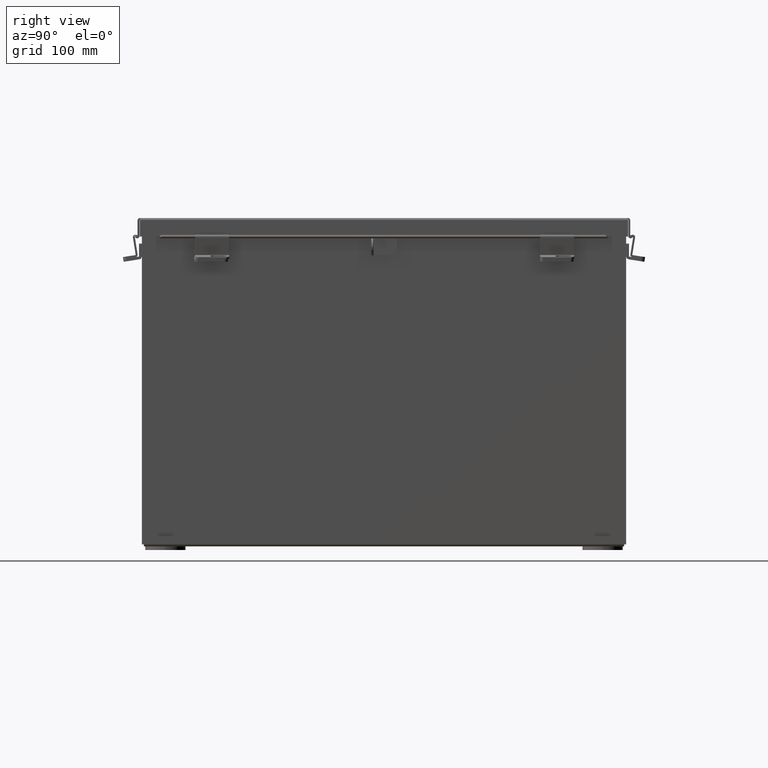
[diagram: clean part render]
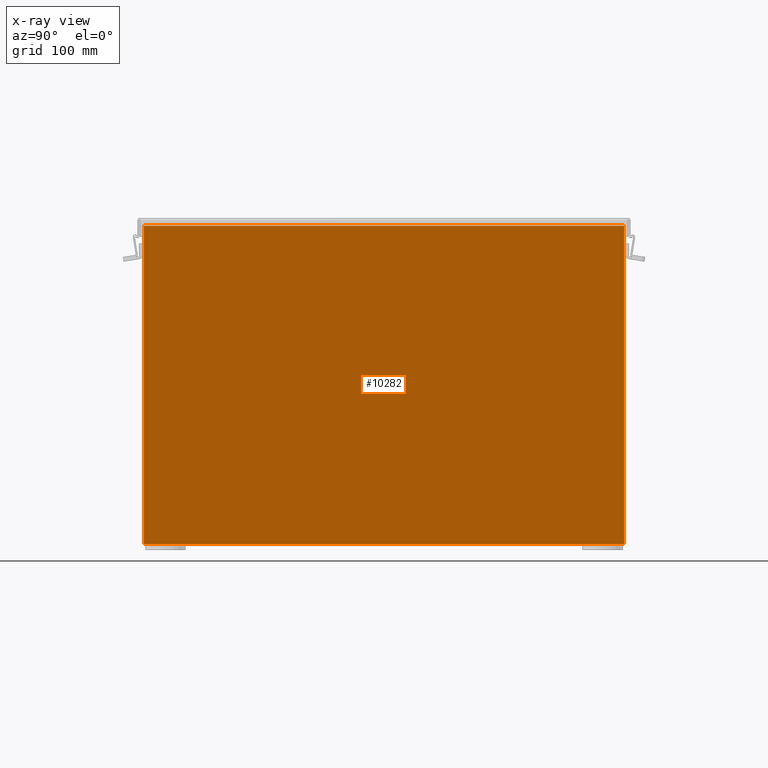
[diagram: x-ray — body ghosted, one internal face saturated and labeled with its STEP entity id]
A machine part, right view, then the same camera in x-ray: the body is ghosted and one INTERNAL B-rep face — a face not visible from any outside direction — is saturated and labeled: STEP entity #10282.
In plain terms, the highlighted planar face has unit normal (-1, 0, 0).
Its self-contained STEP definition (entity closure, byte-faithful):
#373 = VECTOR ( 'NONE', #12422, 39.37007874015748100 ) ;
#860 = VERTEX_POINT ( 'NONE', #9383 ) ;
#949 = CARTESIAN_POINT ( 'NONE',  ( 5.925300000000040900, 8.925299999999992900, 11.83760000000000000 ) ) ;
#1528 = CARTESIAN_POINT ( 'NONE',  ( 5.925300000000040900, 8.925299999999996500, 11.83760000000000000 ) ) ;
#3950 = DIRECTION ( 'NONE',  ( 3.503965158194252900E-015, -9.220960942616452700E-017, 1.000000000000000000 ) ) ;
#4785 = EDGE_LOOP ( 'NONE', ( #16427, #16285, #8627, #14272 ) ) ;
#5383 = CARTESIAN_POINT ( 'NONE',  ( 5.925299999999999100, -8.925300000000003600, 0.01300000000000011600 ) ) ;
#5802 = DIRECTION ( 'NONE',  ( 0.0000000000000000000, 1.000000000000000000, 0.0000000000000000000 ) ) ;
#5975 = LINE ( 'NONE', #5383, #17261 ) ;
#6287 = VERTEX_POINT ( 'NONE', #7163 ) ;
#7138 = CARTESIAN_POINT ( 'NONE',  ( 5.925300000000040900, 8.925299999999996500, 11.85060000000000000 ) ) ;
#7163 = CARTESIAN_POINT ( 'NONE',  ( 5.925300000000040900, -8.925300000000001800, 11.83760000000000000 ) ) ;
#8627 = ORIENTED_EDGE ( 'NONE', *, *, #13394, .F. ) ;
#8682 = FACE_OUTER_BOUND ( 'NONE', #4785, .T. ) ;
#9383 = CARTESIAN_POINT ( 'NONE',  ( 5.925299999999999100, -8.925300000000003600, 0.01300000000000011600 ) ) ;
#9482 = AXIS2_PLACEMENT_3D ( 'NONE', #11749, #17339, #17778 ) ;
#10282 = ADVANCED_FACE ( 'NONE', ( #8682 ), #12884, .T. ) ;
#10541 = VERTEX_POINT ( 'NONE', #16852 ) ;
#11017 = LINE ( 'NONE', #949, #18433 ) ;
#11292 = EDGE_CURVE ( 'NONE', #6287, #860, #19055, .T. ) ;
#11749 = CARTESIAN_POINT ( 'NONE',  ( 5.925299999999999100, 0.0000000000000000000, -2.102669252623462500E-014 ) ) ;
#12422 = DIRECTION ( 'NONE',  ( -3.503965158194252900E-015, -0.0000000000000000000, -1.000000000000000000 ) ) ;
#12799 = CARTESIAN_POINT ( 'NONE',  ( 5.925299999999999100, -8.925300000000003600, 0.0000000000000000000 ) ) ;
#12884 = PLANE ( 'NONE',  #9482 ) ;
#13195 = VECTOR ( 'NONE', #3950, 39.37007874015748100 ) ;
#13394 = EDGE_CURVE ( 'NONE', #10541, #13418, #18065, .T. ) ;
#13418 = VERTEX_POINT ( 'NONE', #1528 ) ;
#14272 = ORIENTED_EDGE ( 'NONE', *, *, #17749, .F. ) ;
#15744 = DIRECTION ( 'NONE',  ( -0.0000000000000000000, -1.000000000000000000, -0.0000000000000000000 ) ) ;
#16285 = ORIENTED_EDGE ( 'NONE', *, *, #17453, .F. ) ;
#16427 = ORIENTED_EDGE ( 'NONE', *, *, #11292, .F. ) ;
#16852 = CARTESIAN_POINT ( 'NONE',  ( 5.925299999999999100, 8.925299999999996500, 0.01300000000000011600 ) ) ;
#17261 = VECTOR ( 'NONE', #5802, 39.37007874015748100 ) ;
#17339 = DIRECTION ( 'NONE',  ( -1.000000000000000000, 0.0000000000000000000, 3.503965158194252100E-015 ) ) ;
#17453 = EDGE_CURVE ( 'NONE', #13418, #6287, #11017, .T. ) ;
#17749 = EDGE_CURVE ( 'NONE', #860, #10541, #5975, .T. ) ;
#17778 = DIRECTION ( 'NONE',  ( 3.503965158194252100E-015, 0.0000000000000000000, 1.000000000000000000 ) ) ;
#18065 = LINE ( 'NONE', #7138, #13195 ) ;
#18433 = VECTOR ( 'NONE', #15744, 39.37007874015748100 ) ;
#19055 = LINE ( 'NONE', #12799, #373 ) ;